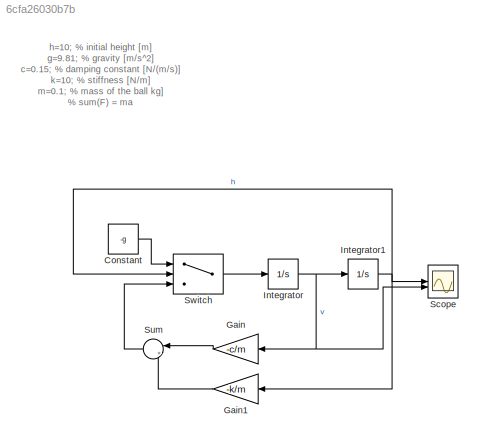
MODEL slx_6cfa26030b7b
KIND model
CONFIG AbsTol = auto
CONFIG EnableMultiTasking = off
CONFIG FixedStep = auto
CONFIG MaxStep = auto
CONFIG MinStep = auto
CONFIG RelTol = 1e-3
CONFIG SampleTimeConstraint = Unconstrained
CONFIG SolverName = VariableStepAuto
CONFIG StartTime = 0.0
CONFIG StopTime = 10
BLOCK [Constant] Constant
  Value = -g
BLOCK [Gain] Gain
  Gain = -c/m
  NameLocation = top
BLOCK [Gain] Gain1
  Gain = -k/m
  NameLocation = top
BLOCK [Integrator] Integrator
BLOCK [Integrator] Integrator1
  InitialCondition = h
BLOCK [Scope] Scope
  Floating = off
  NumInputPorts = 2
  ScopeSpecificationString = Simulink.scopes.TimeScopeBlockCfg('CurrentConfiguration', extmgr.ConfigurationSet(extmgr.Configuration('Core','General UI',true),extmgr.Configuration('Core','Source UI',true),extmgr.Configuration('Sources','WiredSimulink',true),extmgr.Configuration('Visuals','Time Domain',true,'SerializedDisplays',{struct('MinYLimReal','-17.14698','MaxYLimReal','14.25142','YLabelReal','','MinYLimMag','0.00000','Ma...<+1486ch>
BLOCK [Sum] Sum
  Inputs = |++
  NameLocation = top
BLOCK [Switch] Switch
  Criteria = u2 > Threshold
  InputSameDT = off
  SaturateOnIntegerOverflow = off
ANNOTATION (root): h=10; % initial height [m] g=9.81; % gravity [m/s^2] c=0.15; % damping constant [N/(m/s)] k=10; % stiffness [N/m] m=0.1; % mass of the ball kg] % sum(F) = ma % F = -kx % ma = kx
LINE Constant:1 -> Switch:1
LINE Gain1:1 -> Sum:2
LINE Gain:1 -> Sum:1
NET Integrator1:1 -> Gain1:1, Scope:1, Switch:2
NET Integrator:1 -> Gain:1, Integrator1:1, Scope:2
LINE Sum:1 -> Switch:3
LINE Switch:1 -> Integrator:1
note: NET lines group one-source signal fan-out (src -> all destinations, sorted); 1:1 wires keep LINE
